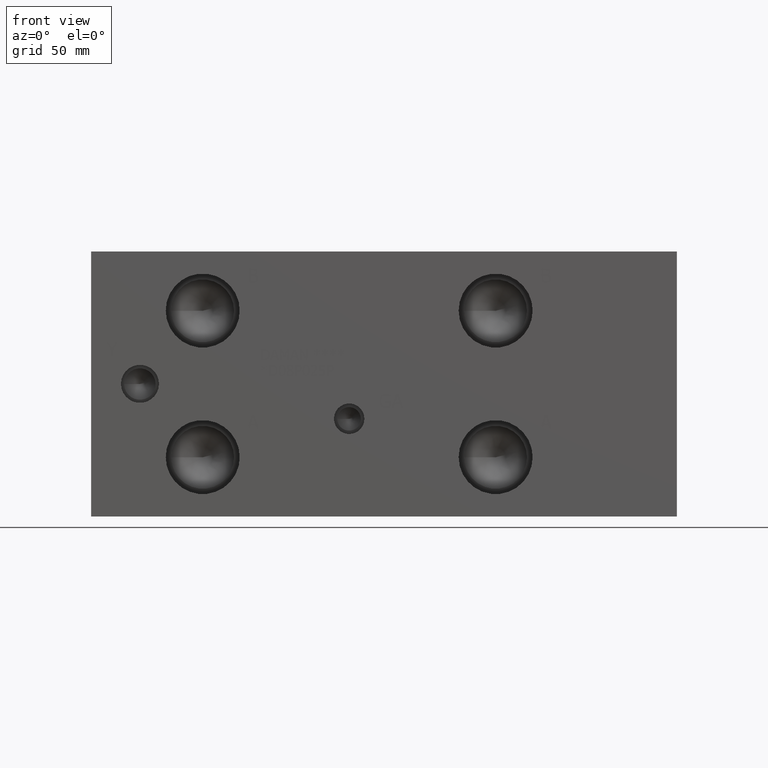
[diagram: clean part render]
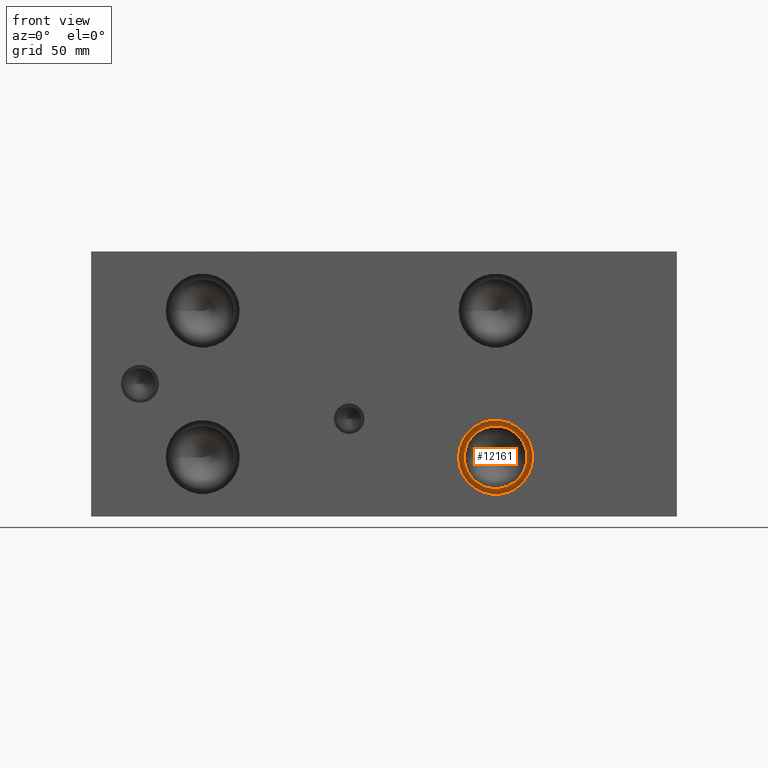
[diagram: same view with one face highlighted and labeled with its STEP entity id]
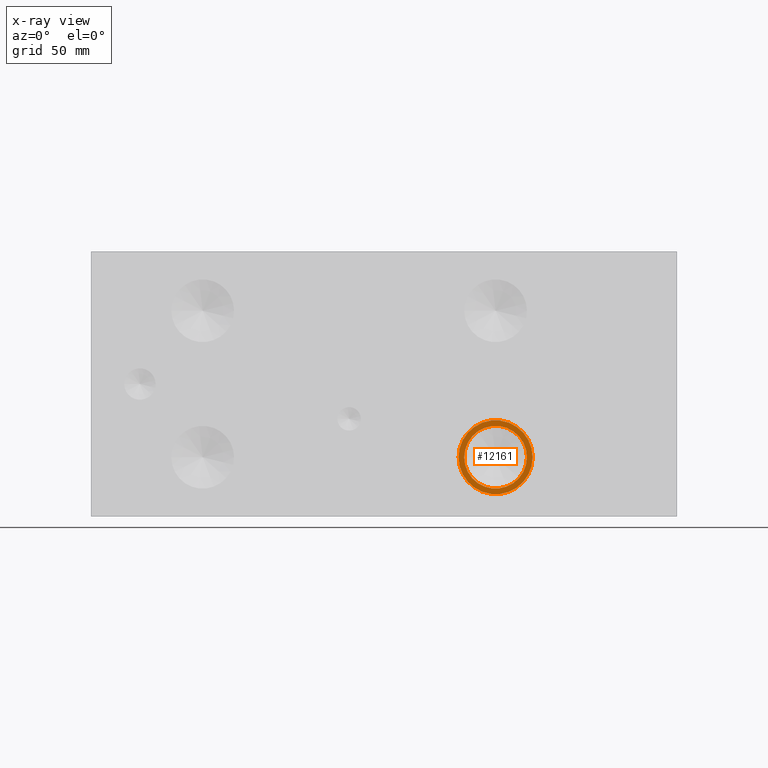
[diagram: x-ray of the same camera — body ghosted, the highlighted face saturated]
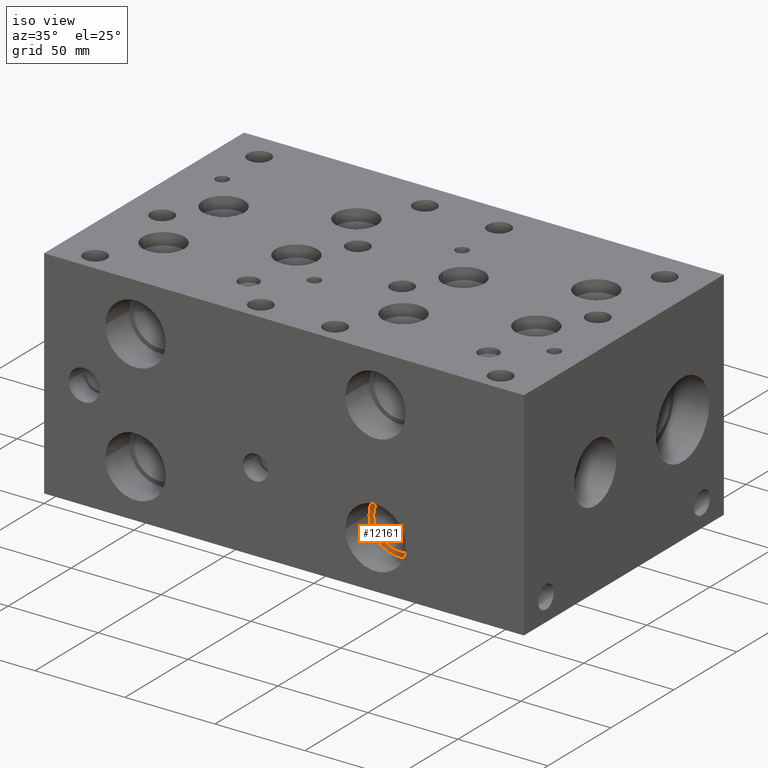
[diagram: same view with one face highlighted and labeled with its STEP entity id]
A machine part, front view. The second image highlights one B-rep face of the part: STEP entity #12161.
The next image is the same camera in x-ray: the body ghosted, the highlighted face saturated — about 0% of this face is hidden behind the body in this view.
A second angle (iso view) of the same face is appended — the face is thin or edge-on in the first view.
In plain terms, the highlighted planar face has unit normal (0, -1, 0).
Its self-contained STEP definition (entity closure, byte-faithful):
#225=CIRCLE('',#12746,16.8529);
#226=CIRCLE('',#12747,16.8529);
#227=CIRCLE('',#12748,14.2875);
#451=FACE_BOUND('',#2204,.T.);
#1500=FACE_OUTER_BOUND('',#2203,.T.);
#2203=EDGE_LOOP('',(#10312,#10313));
#2204=EDGE_LOOP('',(#10314));
#5566=VERTEX_POINT('',#20585);
#5567=VERTEX_POINT('',#20586);
#5568=VERTEX_POINT('',#20589);
#7204=EDGE_CURVE('',#5566,#5567,#225,.T.);
#7205=EDGE_CURVE('',#5567,#5566,#226,.T.);
#7206=EDGE_CURVE('',#5568,#5568,#227,.T.);
#10312=ORIENTED_EDGE('',*,*,#7204,.T.);
#10313=ORIENTED_EDGE('',*,*,#7205,.T.);
#10314=ORIENTED_EDGE('',*,*,#7206,.F.);
#11137=PLANE('',#12745);
#12161=ADVANCED_FACE('',(#1500,#451),#11137,.T.);
#12745=AXIS2_PLACEMENT_3D('',#20584,#14993,#14994);
#12746=AXIS2_PLACEMENT_3D('',#20587,#14995,#14996);
#12747=AXIS2_PLACEMENT_3D('',#20588,#14997,#14998);
#12748=AXIS2_PLACEMENT_3D('',#20590,#14999,#15000);
#14993=DIRECTION('center_axis',(0.,-1.,0.));
#14994=DIRECTION('ref_axis',(1.,0.,0.));
#14995=DIRECTION('center_axis',(0.,-1.,0.));
#14996=DIRECTION('ref_axis',(1.,0.,0.));
#14997=DIRECTION('center_axis',(0.,-1.,0.));
#14998=DIRECTION('ref_axis',(1.,0.,0.));
#14999=DIRECTION('center_axis',(0.,-1.,0.));
#15000=DIRECTION('ref_axis',(1.,0.,0.));
#20584=CARTESIAN_POINT('Origin',(184.15,18.9992,26.9748));
#20585=CARTESIAN_POINT('',(201.0029,18.9992,26.9748));
#20586=CARTESIAN_POINT('',(167.2971,18.9992,26.9748));
#20587=CARTESIAN_POINT('Origin',(184.15,18.9992,26.9748));
#20588=CARTESIAN_POINT('Origin',(184.15,18.9992,26.9748));
#20589=CARTESIAN_POINT('',(169.8625,18.9992,26.9748));
#20590=CARTESIAN_POINT('Origin',(184.15,18.9992,26.9748));